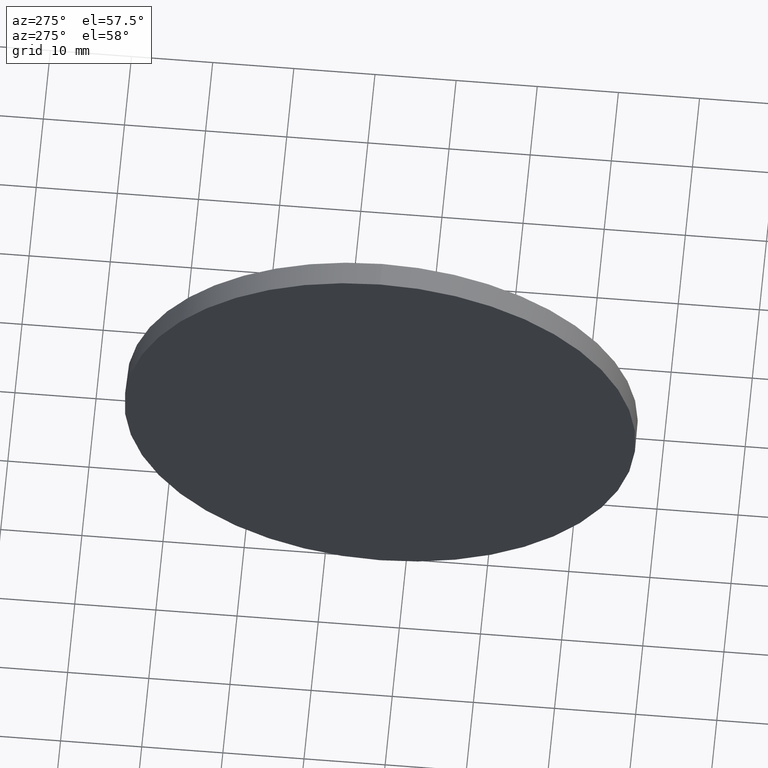
[diagram: clean part render]
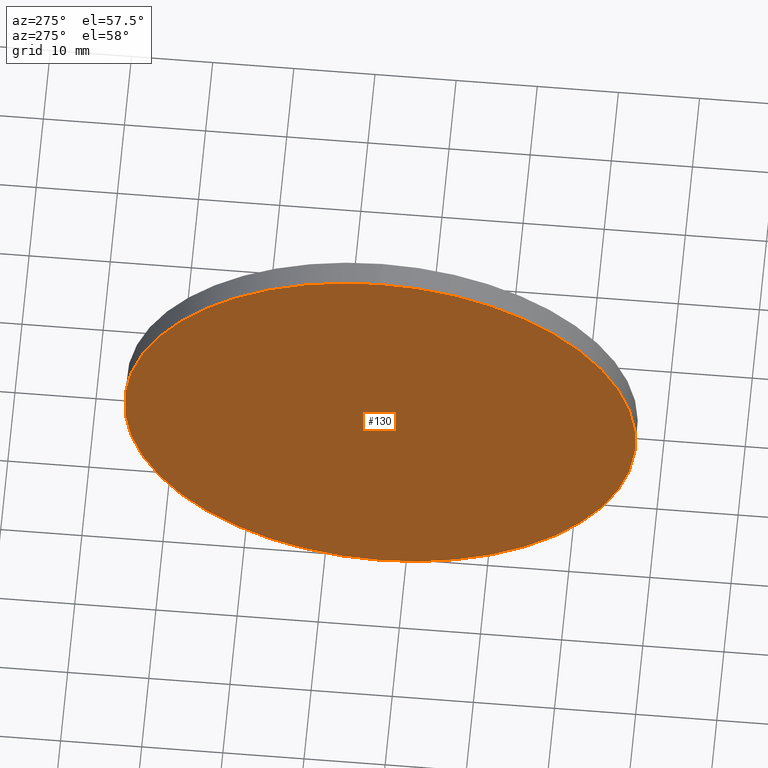
[diagram: same view with one face highlighted and labeled with its STEP entity id]
A machine part, auxiliary view. The second image highlights one B-rep face of the part: STEP entity #130.
In plain terms, the highlighted planar face has unit normal (1, 0, 0).
Its self-contained STEP definition (entity closure, byte-faithful):
#8 = PLANE ( 'NONE',  #135 ) ;
#9 = DIRECTION ( 'NONE',  ( 0.0000000000000000000, 0.0000000000000000000, 1.000000000000000000 ) ) ;
#12 = EDGE_LOOP ( 'NONE', ( #15, #101 ) ) ;
#13 = EDGE_CURVE ( 'NONE', #55, #89, #144, .T. ) ;
#15 = ORIENTED_EDGE ( 'NONE', *, *, #13, .T. ) ;
#19 = DIRECTION ( 'NONE',  ( -1.000000000000000000, -0.0000000000000000000, -0.0000000000000000000 ) ) ;
#34 = AXIS2_PLACEMENT_3D ( 'NONE', #97, #51, #9 ) ;
#38 = AXIS2_PLACEMENT_3D ( 'NONE', #75, #19, #131 ) ;
#49 = CARTESIAN_POINT ( 'NONE',  ( 448.7579245164399700, 33.14734230930401500, -31.50000000000000000 ) ) ;
#51 = DIRECTION ( 'NONE',  ( -1.000000000000000000, -0.0000000000000000000, -0.0000000000000000000 ) ) ;
#55 = VERTEX_POINT ( 'NONE', #92 ) ;
#62 = CARTESIAN_POINT ( 'NONE',  ( 448.7579245164399700, 33.14734230930400800, 0.0000000000000000000 ) ) ;
#75 = CARTESIAN_POINT ( 'NONE',  ( 448.7579245164399700, 33.14734230930400800, 0.0000000000000000000 ) ) ;
#85 = DIRECTION ( 'NONE',  ( 0.0000000000000000000, 0.0000000000000000000, -1.000000000000000000 ) ) ;
#89 = VERTEX_POINT ( 'NONE', #49 ) ;
#92 = CARTESIAN_POINT ( 'NONE',  ( 448.7579245164399700, 33.14734230930400800, 31.50000000000000000 ) ) ;
#97 = CARTESIAN_POINT ( 'NONE',  ( 448.7579245164399700, 33.14734230930400800, 0.0000000000000000000 ) ) ;
#101 = ORIENTED_EDGE ( 'NONE', *, *, #154, .T. ) ;
#118 = CIRCLE ( 'NONE', #34, 31.50000000000000000 ) ;
#123 = DIRECTION ( 'NONE',  ( 1.000000000000000000, 0.0000000000000000000, 0.0000000000000000000 ) ) ;
#130 = ADVANCED_FACE ( 'NONE', ( #168 ), #8, .F. ) ;
#131 = DIRECTION ( 'NONE',  ( 0.0000000000000000000, 0.0000000000000000000, 1.000000000000000000 ) ) ;
#135 = AXIS2_PLACEMENT_3D ( 'NONE', #62, #123, #85 ) ;
#144 = CIRCLE ( 'NONE', #38, 31.50000000000000000 ) ;
#154 = EDGE_CURVE ( 'NONE', #89, #55, #118, .T. ) ;
#168 = FACE_OUTER_BOUND ( 'NONE', #12, .T. ) ;